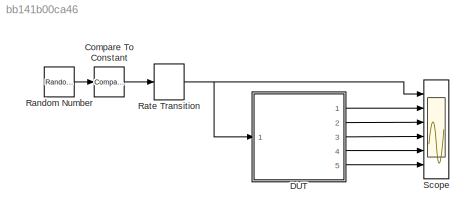
MODEL slx_bb141b00ca46
KIND model
BLOCK [Reference] Compare To Constant  REF=simulink/Logic and Bit
Operations/Compare
To Constant
  OutDataTypeStr = boolean
  Ports = [1, 1]
  SourceBlock = simulink/Logic and Bit\nOperations/Compare\nTo Constant
  SourceType = Compare To Constant
  ZeroCross = off
  const = 0.8
  relop = <=
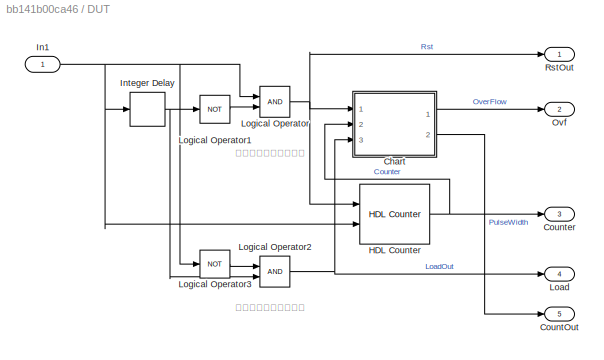
BLOCK [SubSystem] DUT
  Ports = [1, 5]
  RequestExecContextInheritance = off
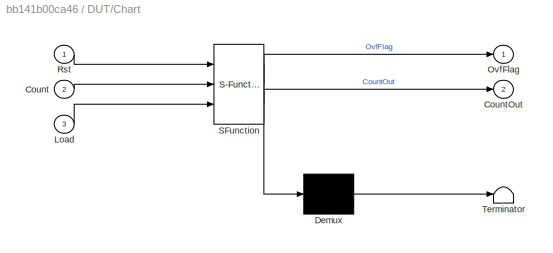
BLOCK [SubSystem] DUT/Chart
  ErrorFcn = Stateflow.Translate.translate
  PermitHierarchicalResolution = ExplicitOnly
  Ports = [3, 2]
  RequestExecContextInheritance = off
  SFBlockType = Chart
  TreatAsAtomicUnit = on
BLOCK [Demux] DUT/Chart/ Demux 
  Outputs = 1
  Ports = [1, 1]
BLOCK [S-Function] DUT/Chart/ SFunction 
  EnableBusSupport = on
  FunctionName = sf_sfun
  PortCounts = [3 3]
  Ports = [3, 3]
  Tag = Stateflow S-Function CountOvf_step6 1
BLOCK [Terminator] DUT/Chart/ Terminator 
BLOCK [Inport] DUT/Chart/Count
  IconDisplay = Port number
  Port = 2
BLOCK [Outport] DUT/Chart/CountOut
  IconDisplay = Port number
  Port = 2
BLOCK [Inport] DUT/Chart/Load
  IconDisplay = Port number
  Port = 3
BLOCK [Outport] DUT/Chart/OvfFlag
  IconDisplay = Port number
BLOCK [Inport] DUT/Chart/Rst
  IconDisplay = Port number
BLOCK [Outport] DUT/CountOut
  IconDisplay = Port number
  Port = 5
BLOCK [Outport] DUT/Counter
  IconDisplay = Port number
  Port = 3
BLOCK [Reference] DUT/HDL Counter  REF=hdlsllib/HDL Operations/HDL Counter
  CountDataType = Unsigned
  CountDirPort = off
  CountEnbPort = on
  CountFracLen = 0
  CountFrom = 1
  CountFromType = Initial value
  CountInit = 1
  CountLoadPort = off
  CountMax = 100
  CountResetPort = on
  CountSampTime = 1
  CountStep = 1
  CountType = Free running
  CountWordLen = 8
  Ports = [2, 1]
  SourceBlock = hdlsllib/HDL Operations/HDL Counter
  SourceType = HDL Counter
BLOCK [Inport] DUT/In1
  IconDisplay = Port number
BLOCK [Delay] DUT/Integer Delay
  DelayLength = 1
  InputPortMap = u0
  InputProcessing = Inherited
  Ports = [1, 1]
BLOCK [Outport] DUT/Load
  IconDisplay = Port number
  Port = 4
BLOCK [Logic] DUT/Logical Operator
  AllPortsSameDT = off
  OutDataTypeStr = boolean
  Ports = [2, 1]
BLOCK [Logic] DUT/Logical Operator1
  AllPortsSameDT = off
  Operator = NOT
  OutDataTypeStr = boolean
  Ports = [1, 1]
BLOCK [Logic] DUT/Logical Operator2
  AllPortsSameDT = off
  OutDataTypeStr = boolean
  Ports = [2, 1]
BLOCK [Logic] DUT/Logical Operator3
  AllPortsSameDT = off
  Operator = NOT
  OutDataTypeStr = boolean
  Ports = [1, 1]
BLOCK [Outport] DUT/Ovf
  IconDisplay = Port number
  Port = 2
BLOCK [Outport] DUT/RstOut
  IconDisplay = Port number
BLOCK [RandomNumber] Random Number
  SampleTime = 70
BLOCK [RateTransition] Rate Transition
  OutPortSampleTime = 1
BLOCK [Scope] Scope
  DataFormat = StructureWithTime
  Floating = off
  NumInputPorts = 6
  Ports = [6]
  SampleTime = 0
  ShowLegends = off
  TimeRange = 2000
  YMax = 2~2~2~260~2~260
  YMin = -1~-1~-1~-5~-1~-1
  ZoomMode = xonly
ANNOTATION DUT: 立ち上がりエッジ検出
ANNOTATION DUT: 立ち下がりエッジ検出
LINE Compare To Constant:1 -> Rate Transition:1
LINE DUT/Chart:1 -> DUT/Ovf:1
LINE DUT/Chart:2 -> DUT/CountOut:1
NET DUT/HDL Counter:1 -> DUT/Chart:2, DUT/Counter:1
NET DUT/In1:1 -> DUT/HDL Counter:2, DUT/Integer Delay:1, DUT/Logical Operator3:1, DUT/Logical Operator:1
NET DUT/Integer Delay:1 -> DUT/Logical Operator1:1, DUT/Logical Operator2:2
LINE DUT/Logical Operator1:1 -> DUT/Logical Operator:2
NET DUT/Logical Operator2:1 -> DUT/Chart:3, DUT/Load:1
LINE DUT/Logical Operator3:1 -> DUT/Logical Operator2:1
NET DUT/Logical Operator:1 -> DUT/Chart:1, DUT/HDL Counter:1, DUT/RstOut:1
LINE DUT:1 -> Scope:2
LINE DUT:2 -> Scope:3
LINE DUT:3 -> Scope:4
LINE DUT:4 -> Scope:5
LINE DUT:5 -> Scope:6
LINE Random Number:1 -> Compare To Constant:1
NET Rate Transition:1 -> DUT:1, Scope:1
note: NET lines group one-source signal fan-out (src -> all destinations, sorted); 1:1 wires keep LINE
CHART DUT/Chart states=4 transitions=10
  STATE_LABEL 'Init'
  STATE_LABEL 'CountMax'
  STATE_LABEL 'Ovf'
  STATE_LABEL 'LoadCount'
